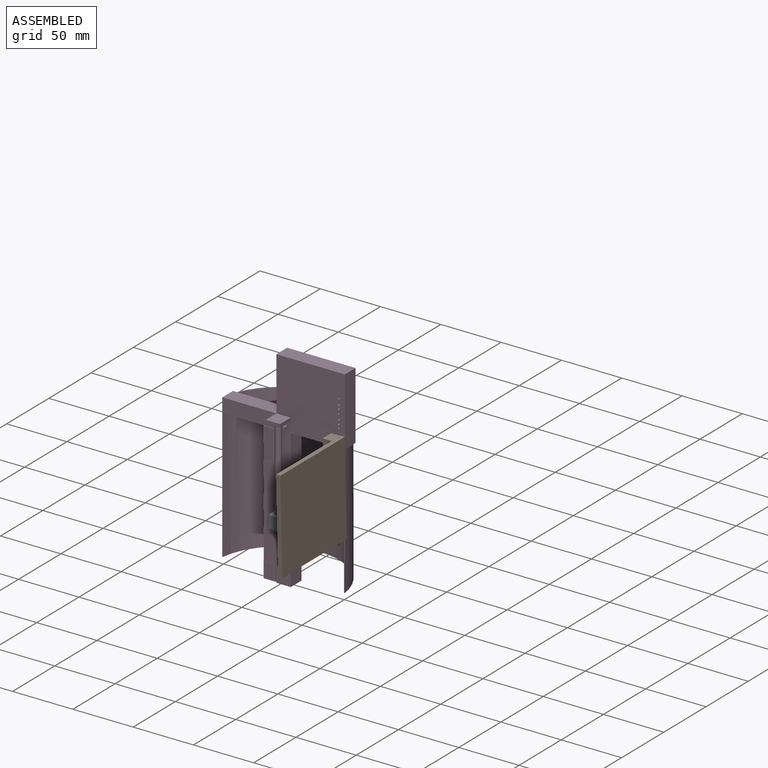
[diagram: assembled view]
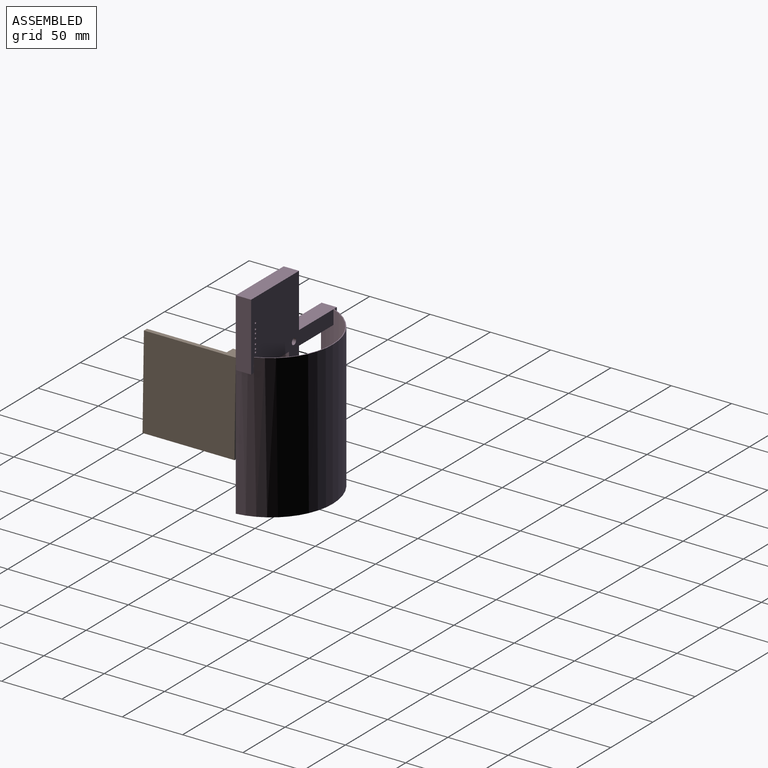
[diagram: assembled view, second angle]
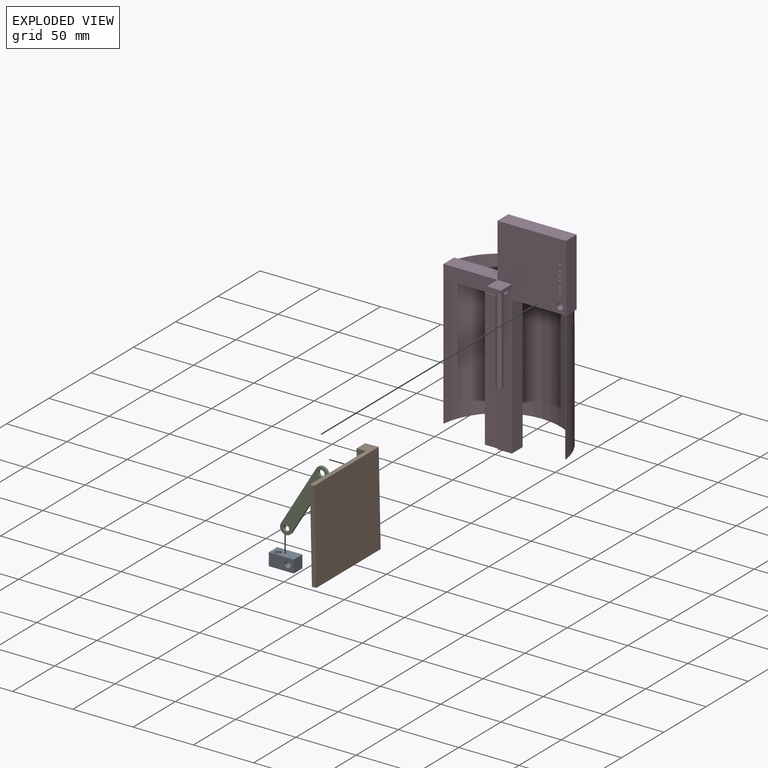
[diagram: exploded view]
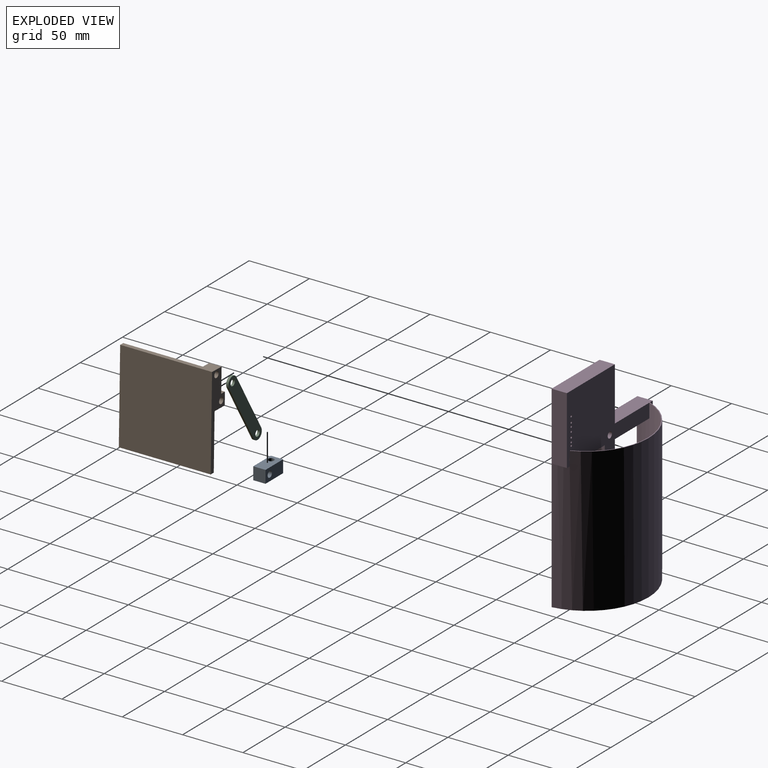
[diagram: exploded view, second angle]
ASSEMBLY  parts=4 mates=4
PART A: 8 faces, bbox 20.8x10.2x10.4 mm
  f0: plane 20.83x10.16mm, normal (0,0,-1), area 191.3mm2, adj f1,f3,f5,f6,f7
  f1: plane 10.41x10.16mm, normal (1,0,0), area 105.8mm2, adj f0,f2,f5,f6
  f2: plane 20.83x10.16mm, normal (0,0,1), area 191.3mm2, adj f1,f3,f5,f6,f7
  f3: plane 10.41x10.16mm, normal (-1,0,0), area 105.8mm2, adj f0,f2,f5,f6
  f4: cylinder r=2.54mm len=10.16mm, axis (0,1,0), area 162.1mm2, adj f5,f6
  f5: plane 20.83x10.41mm, normal (0,-1,0), area 196.6mm2, adj f0,f1,f2,f3,f4
  f6: plane 20.83x10.41mm, normal (0,1,0), area 196.6mm2, adj f0,f1,f2,f3,f4
  f7: cylinder r=2.54mm len=10.41mm, axis (0,0,1), area 166.2mm2, adj f0,f2
PART B: 14 faces, bbox 15.7x76.2x76.2 mm
  f0: plane 10.28x10.16mm, normal (-1,0,0), area 104.4mm2, adj f1,f8,f10,f11
  f1: plane 12.04x10.16mm, normal (0,0,-1), area 122.3mm2, adj f0,f2,f10,f11
  f2: plane 76.2x76.2mm, normal (-1,0,0), area 5496.8mm2, adj f1,f3,f5,f10,f11,f12,f13
  f3: plane 76.2x3.63mm, normal (0,0,-1), area 276.8mm2, adj f2,f4,f11,f12
  f4: plane 76.2x76.2mm, normal (1,0,0), area 5806.4mm2, adj f3,f5,f11,f12
  f5: plane 76.2x11.29mm, normal (0,0,1), area 354.6mm2, adj f2,f4,f6,f10,f11,f12
  f6: plane 20.2x10.16mm, normal (-1,0,0), area 205.2mm2, adj f5,f8,f10,f11
  f7: cylinder r=2.54mm len=10.16mm, axis (0,1,0), area 162.1mm2, adj f10,f11
  f8: plane 10.16x4.38mm, normal (0,0,1), area 44.5mm2, adj f0,f6,f10,f11
  f9: cylinder r=2.54mm len=10.16mm, axis (0,1,0), area 162.1mm2, adj f10,f11,f13
  f10: plane 30.48x12.04mm, normal (0,-1,0), area 240.3mm2, adj f0,f1,f2,f5,f6,f7,f8,f9
  f11: plane 76.2x15.67mm, normal (0,1,0), area 514.7mm2, adj f0,f1,f2,f3,f4,f5,f6,f7
  f12: plane 76.2x3.63mm, normal (0,-1,0), area 276.8mm2, adj f2,f3,f4,f5
  f13: plane 3.86x0.89mm, normal (0,1,0), area 2.4mm2, adj f2,f9
PART C: 8 faces, bbox 67.2x1.9x13.4 mm
  f0: cylinder r=5.08mm len=10.15mm, axis (0,1,0), area 30.4mm2, adj f1,f3,f6,f7
  f1: plane 57.06x3.29mm, normal (0.06,0,1), area 108.9mm2, adj f0,f2,f6,f7
  f2: cylinder r=5.08mm len=10.15mm, axis (0,1,0), area 30.4mm2, adj f1,f3,f6,f7
  f3: plane 57.06x3.29mm, normal (-0.06,0,-1), area 108.9mm2, adj f0,f2,f6,f7
  f4: cylinder r=2.54mm len=5.08mm, axis (0,1,0), area 30.4mm2, adj f6,f7
  f5: cylinder r=2.54mm len=5.08mm, axis (0,1,0), area 30.4mm2, adj f6,f7
  f6: plane 67.22x13.45mm, normal (0,-1,0), area 621.2mm2, adj f0,f1,f2,f3,f4,f5
  f7: plane 67.22x13.45mm, normal (0,1,0), area 621.2mm2, adj f0,f1,f2,f3,f4,f5
PART D: 80 faces, bbox 101.6x57.6x171.4 mm
  f0: plane 11.74x0.02mm, normal (0,-1,0), area 0.2mm2, adj f1,f17,f26,f75
  f1: plane 0.02x0mm, normal (0,0,-1), area 0mm2, adj f0,f26,f75
  f2: plane 44.17x12.7mm, normal (0,0,-1), area 542.2mm2, adj f7,f9,f10,f37,f62,f74
  f3: plane 44.17x12.7mm, normal (0,0,-1), area 543.5mm2, adj f7,f10,f13,f74
  f4: plane 56.11x12.7mm, normal (1,0,0), area 711.5mm2, adj f7,f10,f14,f15,f73,f79
  f5: plane 12.61x11.74mm, normal (-1,0,0), area 148mm2, adj f8,f11,f17,f73
  f6: cylinder r=2.54mm len=3.3mm, axis (0,-1,0), area 3.8mm2, adj f7,f73
  f7: plane 171.37x97.61mm, normal (0,1,0), area 4980.7mm2, adj f2,f3,f4,f6,f9,f12,f13,f14
  f8: plane 11.74x3.27mm, normal (0,1,0), area 38.4mm2, adj f5,f11,f17,f73
  f9: plane 115.27x12.7mm, normal (-1,0,0), area 1430mm2, adj f2,f7,f10,f12,f35,f36,f40,f42
  f10: plane 171.37x100.94mm, normal (0,-1,0), area 4982.2mm2, adj f2,f3,f4,f9,f12,f13,f15,f16
  f11: plane 12.61x3.27mm, normal (0,0,-1), area 17mm2, adj f5,f8,f73
  f12: plane 12.7x11.94mm, normal (0,0,-1), area 151.6mm2, adj f7,f9,f10,f13
  f13: plane 115.27x12.7mm, normal (1,0,0), area 1463.9mm2, adj f3,f7,f10,f12
  f14: plane 12.61x3.27mm, normal (0,0,-1), area 17mm2, adj f4,f7,f73
  f15: plane 56.77x12.7mm, normal (0,0,1), area 721mm2, adj f4,f7,f10,f16
  f16: plane 44.37x12.7mm, normal (-1,0,0), area 563.5mm2, adj f7,f10,f15,f17
  f17: plane 98.34x44.9mm, normal (0,0,1), area 650.4mm2, adj f0,f5,f7,f8,f10,f16,f26,f73
  f18: cylinder r=2.54mm len=12.7mm, axis (0,-1,0), area 202.7mm2, adj f7,f10
  f19: cylinder r=0.79mm len=12.7mm, axis (0,-1,0), area 62.9mm2, adj f7,f10
  f20: cylinder r=0.79mm len=12.7mm, axis (0,-1,0), area 62.9mm2, adj f7,f10
  f21: cylinder r=0.79mm len=12.7mm, axis (0,-1,0), area 62.9mm2, adj f7,f10
  f22: cylinder r=0.79mm len=12.7mm, axis (0,-1,0), area 62.9mm2, adj f7,f10
  f23: cylinder r=0.79mm len=12.7mm, axis (0,-1,0), area 62.9mm2, adj f7,f10
  f24: cylinder r=0.79mm len=12.7mm, axis (0,-1,0), area 62.9mm2, adj f7,f10
  f25: cylinder r=0.79mm len=12.7mm, axis (0,-1,0), area 62.9mm2, adj f7,f10
  f26: plane 11.74x0mm, normal (-1,0,0), area 0mm2, adj f0,f1,f17,f75
  f27: cylinder r=2.54mm len=12.7mm, axis (0,-1,0), area 189.9mm2, adj f7,f10,f74
  f28: plane 12.7x11.94mm, normal (0,0,1), area 151.6mm2, adj f10,f29,f31,f32
  f29: plane 12.7x2.96mm, normal (-1,0,0), area 37.7mm2, adj f10,f28,f30,f32
  f30: plane 12.7x11.94mm, normal (0,0,-1), area 131.3mm2, adj f10,f29,f31,f32,f33
  f31: plane 12.7x2.96mm, normal (1,0,0), area 37.7mm2, adj f10,f28,f30,f32
  f32: plane 11.94x2.96mm, normal (0,-1,0), area 35.4mm2, adj f28,f29,f30,f31
  f33: cylinder r=2.54mm len=73.24mm, axis (0,0,1), area 1168.8mm2, adj f30,f34
  f34: plane 5.08x5.08mm, normal (0,0,-1), area 20.3mm2, adj f33
  f35: plane 10.16x0.38mm, normal (0,0,-1), area 3.9mm2, adj f9,f37,f40,f72
  f36: plane 10.16x0.38mm, normal (0,0,1), area 3.9mm2, adj f9,f37,f40,f68
  f37: plane 114.3x1.02mm, normal (-1,0,0), area 85.5mm2, adj f2,f35,f36,f39,f40,f41,f42,f43
  f38: plane 114.3x0.51mm, normal (1,0,0), area 51.6mm2, adj f10,f39,f41,f44,f46,f49,f51,f54
  f39: plane 12.7x10.16mm, normal (0,-1,0), area 129mm2, adj f37,f38,f41,f69
  f40: plane 12.7x10.16mm, normal (0,1,0), area 129mm2, adj f9,f35,f36,f37
  f41: plane 10.16x0.13mm, normal (0,0,-1), area 1.3mm2, adj f37,f38,f39,f67
  f42: plane 10.16x0.38mm, normal (0,0,-1), area 3.9mm2, adj f9,f37,f45,f68
  f43: plane 10.16x0.38mm, normal (0,0,1), area 3.9mm2, adj f9,f37,f45,f65
  f44: plane 12.7x10.16mm, normal (0,-1,0), area 129mm2, adj f37,f38,f46,f66
  f45: plane 12.7x10.16mm, normal (0,1,0), area 129mm2, adj f9,f37,f42,f43
  f46: plane 10.16x0.13mm, normal (0,0,-1), area 1.3mm2, adj f37,f38,f44,f64
  f47: plane 10.16x0.38mm, normal (0,0,-1), area 3.9mm2, adj f9,f37,f50,f65
  f48: plane 10.16x0.38mm, normal (0,0,1), area 3.9mm2, adj f9,f37,f50,f58
  f49: plane 12.7x10.16mm, normal (0,-1,0), area 129mm2, adj f37,f38,f51,f63
  f50: plane 12.7x10.16mm, normal (0,1,0), area 129mm2, adj f9,f37,f47,f48
  f51: plane 10.16x0.13mm, normal (0,0,-1), area 1.3mm2, adj f37,f38,f49,f57
  f52: plane 10.16x0.38mm, normal (0,0,1), area 3.9mm2, adj f9,f37,f55,f62
  f53: plane 10.16x0.38mm, normal (0,0,-1), area 3.9mm2, adj f9,f37,f55,f58
  f54: plane 12.7x10.16mm, normal (0,-1,0), area 129mm2, adj f37,f38,f56,f59
  f55: plane 12.7x10.16mm, normal (0,1,0), area 129mm2, adj f9,f37,f52,f53
  f56: plane 10.16x0.13mm, normal (0,0,1), area 1.3mm2, adj f37,f38,f54,f57
  f57: plane 12.7x10.16mm, normal (0,-1,0), area 129mm2, adj f37,f38,f51,f56
  f58: plane 12.7x10.16mm, normal (0,1,0), area 129mm2, adj f9,f37,f48,f53
  f59: plane 10.16x0.13mm, normal (0,0,-1), area 1.3mm2, adj f37,f38,f54,f61
  f60: plane 10.16x0.51mm, normal (0,0,1), area 5.2mm2, adj f10,f37,f38,f61
  f61: plane 12.7x10.16mm, normal (0,-1,0), area 129mm2, adj f37,f38,f59,f60
  f62: plane 12.7x10.16mm, normal (0,1,0), area 129mm2, adj f2,f9,f37,f52
  f63: plane 10.16x0.13mm, normal (0,0,1), area 1.3mm2, adj f37,f38,f49,f64
  f64: plane 12.7x10.16mm, normal (0,-1,0), area 129mm2, adj f37,f38,f46,f63
  f65: plane 12.7x10.16mm, normal (0,1,0), area 129mm2, adj f9,f37,f43,f47
  f66: plane 10.16x0.13mm, normal (0,0,1), area 1.3mm2, adj f37,f38,f44,f67
  f67: plane 12.7x10.16mm, normal (0,-1,0), area 129mm2, adj f37,f38,f41,f66
  f68: plane 12.7x10.16mm, normal (0,1,0), area 129mm2, adj f9,f36,f37,f42
  f69: plane 10.16x0.13mm, normal (0,0,1), area 1.3mm2, adj f37,f38,f39,f71
  f70: plane 10.16x0.64mm, normal (0,0,-1), area 6.5mm2, adj f9,f37,f38,f71,f72
  f71: plane 12.7x10.16mm, normal (0,-1,0), area 129mm2, adj f37,f38,f69,f70
  f72: plane 12.7x10.16mm, normal (0,1,0), area 129mm2, adj f9,f35,f37,f70
  f73: cylinder r=51.21mm len=119.38mm, axis (0,0,1), area 17380.7mm2, adj f4,f5,f6,f7,f8,f11,f14,f17
  f74: cylinder r=50.54mm len=119.38mm, axis (0,0,1), area 17151.1mm2, adj f2,f3,f7,f10,f17,f27,f75,f76
  f75: plane 119.38x0.67mm, normal (-0.06,-1,0), area 80mm2, adj f0,f1,f17,f26,f73,f74,f78
  f76: plane 119.38x0.66mm, normal (0.12,-0.99,0), area 78.8mm2, adj f74,f77,f78,f79
  f77: plane 119.38x0.01mm, normal (0.67,-0.74,0), area 1.5mm2, adj f73,f76,f78,f79
  f78: plane 101.62x44.94mm, normal (0,0,-1), area 98.7mm2, adj f73,f74,f75,f76,f77
  f79: plane 0.68x0.17mm, normal (0,0,1), area 0mm2, adj f4,f10,f73,f74,f76,f77
PLACE A t=(-37.01,-10.44,-77.84)mm
PLACE B rot(axis=(0,-1,0),1.2deg) t=(-34.44,-10.44,-18.59)mm
PLACE C rot(axis=(0,-1,0),62.4deg) t=(62.87,-10.44,-22.92)mm
PLACE D t=(-37.01,-10.44,-17.78)mm fixed
MATE slider A.f7 <-> D.f33  axis (0,0,1) through (-42.98,-16.79,37.34)mm
MATE revolute A.f4 <-> C.f2  axis (0,1,0) through (-32.44,-20.6,32.14)mm
MATE revolute C.f0 <-> B.f7  axis (0,1,0) through (-3.07,-20.6,81.16)mm
MATE revolute D.f6 <-> B.f9  axis (0,-1,0) through (2.62,-10.44,102.87)mm
